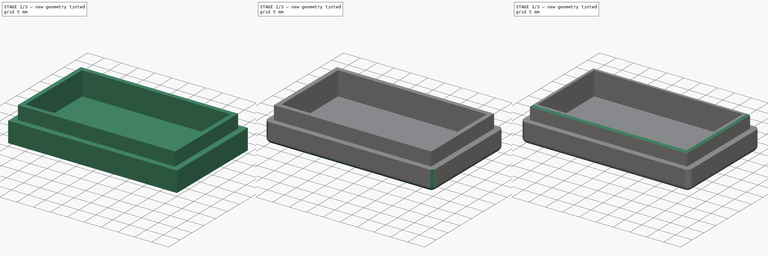
[diagram: build sequence overview — one tinted view per stage of 3, left to right]
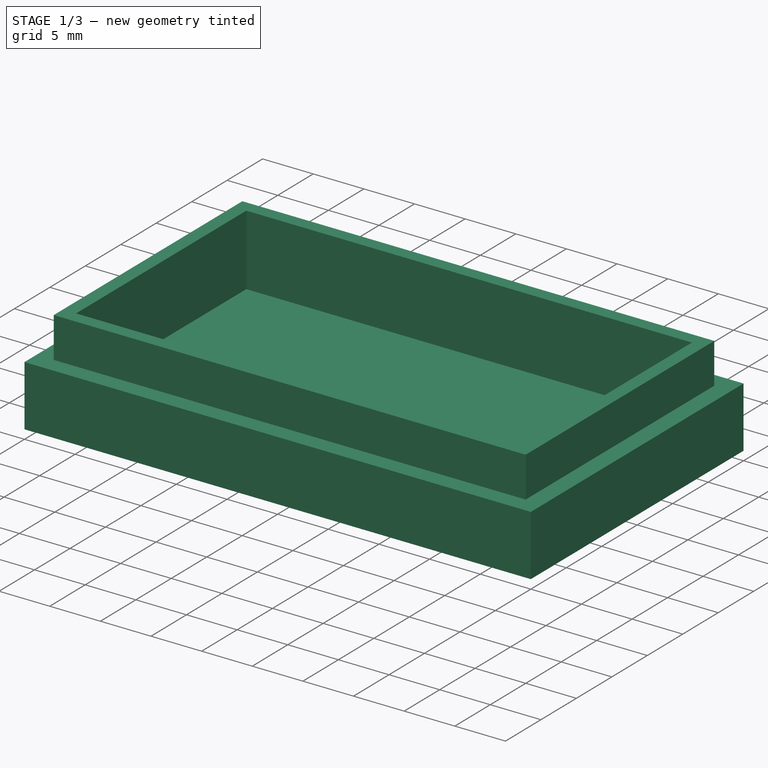
[diagram: stage 1 of 3 — iso view after this stage's code; geometry added in this stage tinted green]
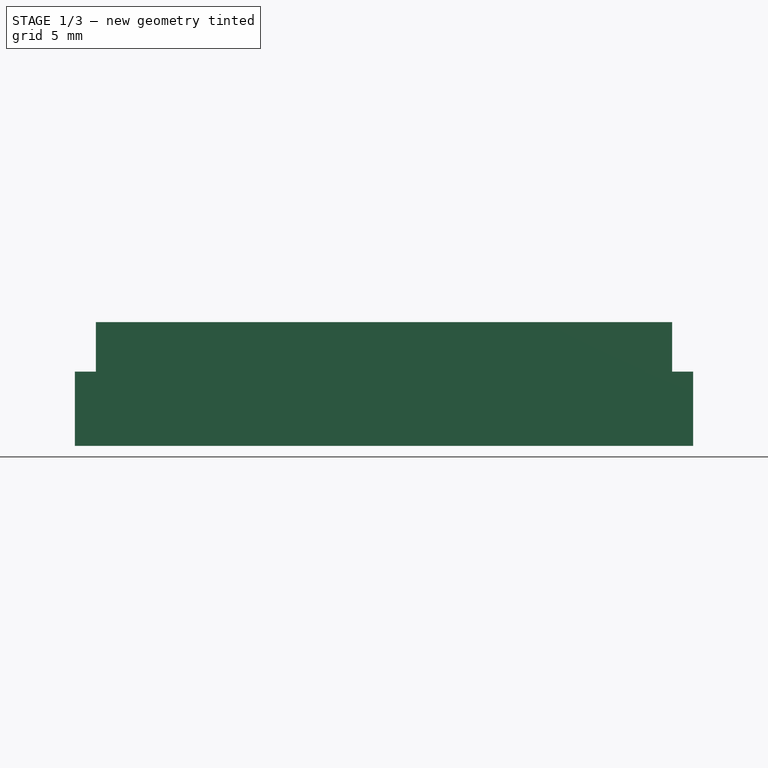
[diagram: stage 1 of 3 — front view after this stage's code; geometry added in this stage tinted green]
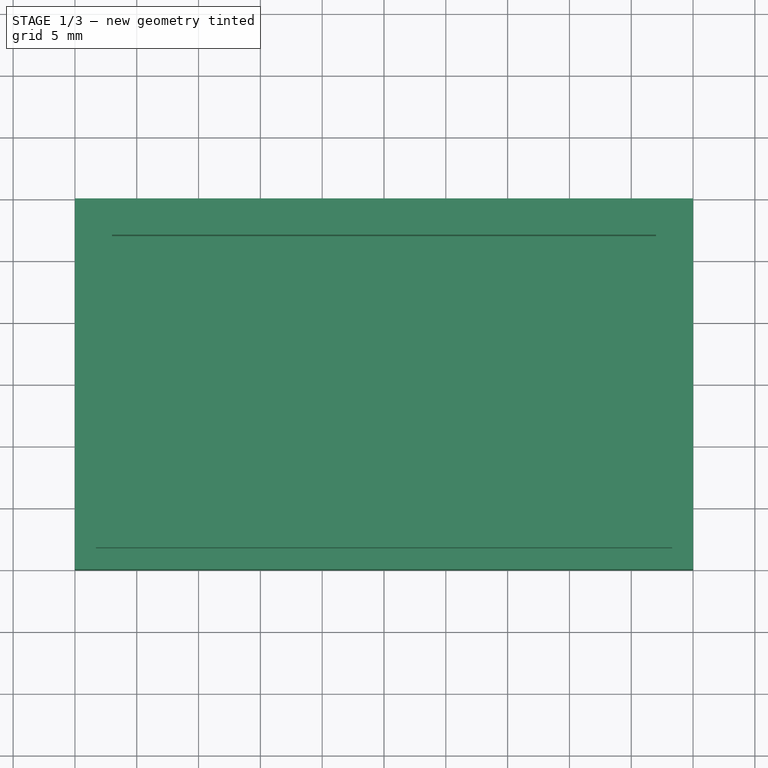
[diagram: stage 1 of 3 — top view after this stage's code; geometry added in this stage tinted green]
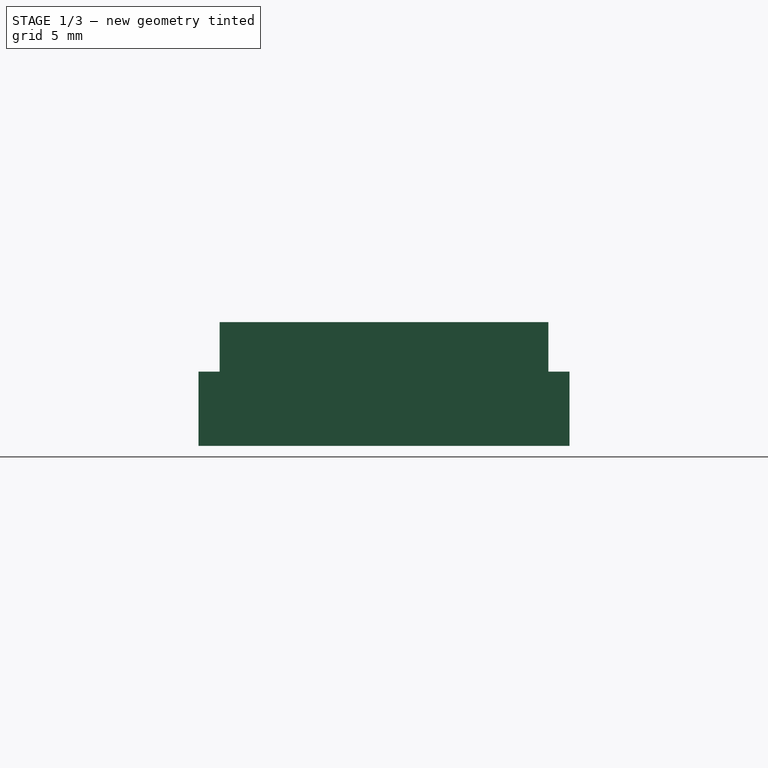
[diagram: stage 1 of 3 — right view after this stage's code; geometry added in this stage tinted green]
FCSTD DOCUMENT  (FreeCAD 0.17R13541 (Git))
Label: pilluleCouvercle
License: All rights reserved
LicenseURL: http://en.wikipedia.org/wiki/All_rights_reserved
objects: Sketcher::SketchObject×3, PartDesign::Pocket×2, PartDesign::Fillet×2, PartDesign::Pad×1, Part::Part2DObjectPython×1, Part::Extrusion×1, PartDesign::Chamfer×1, PartDesign::Body×1, Part::Cut×1
note: 16 computed .brp shape members not serialized (recipe doc carries the construction recipe); baked Part::Feature solids carry a one-line shape summary decoded from their .brp

FEATURE [Sketcher::SketchObject] Sketch
  MapMode = 5
  Support = -> [XY_Plane]
  sketch-geometry (4):
    g0: LineSegment StartX=-25 StartY=15 StartZ=0 EndX=25 EndY=15 EndZ=0
    g1: LineSegment StartX=25 StartY=15 StartZ=0 EndX=25 EndY=-15 EndZ=0
    g2: LineSegment StartX=25 StartY=-15 StartZ=0 EndX=-25 EndY=-15 EndZ=0
    g3: LineSegment StartX=-25 StartY=-15 StartZ=0 EndX=-25 EndY=15 EndZ=0
  constraints (12):
    c: Coincident(g0,g1)
    c: Coincident(g1,g2)
    c: Coincident(g2,g3)
    c: Coincident(g3,g0)
    c: Horizontal(g0)
    c: Horizontal(g2)
    c: Vertical(g1)
    c: Vertical(g3)
    c: DistanceX(g0,g0) = 50
    c: DistanceY(g3,g3) = 30
    c: Symmetric(g0,g0,g-2)
    c: Symmetric(g0,g2,g-1)
FEATURE [PartDesign::Pad] Pad
  Length = 10
  Length2 = 100
  Profile = -> Sketch
  Type = 0
FEATURE [Sketcher::SketchObject] Sketch001
  ExternalGeometry = -> [Pad]
  MapMode = 5
  Placement = pos=(0,0,10) rot=(0,0,1;0rad)
  Support = -> [Pad]
  sketch-geometry (4):
    g0: LineSegment StartX=-22 StartY=12 StartZ=0 EndX=22 EndY=12 EndZ=0
    g1: LineSegment StartX=22 StartY=12 StartZ=0 EndX=22 EndY=-12 EndZ=0
    g2: LineSegment StartX=22 StartY=-12 StartZ=0 EndX=-22 EndY=-12 EndZ=0
    g3: LineSegment StartX=-22 StartY=-12 StartZ=0 EndX=-22 EndY=12 EndZ=0
  constraints (12):
    c: Coincident(g0,g1)
    c: Coincident(g1,g2)
    c: Coincident(g2,g3)
    c: Coincident(g3,g0)
    c: Horizontal(g0)
    c: Horizontal(g2)
    c: Vertical(g1)
    c: Vertical(g3)
    c: DistanceX(g-5,g0) = 3
    c: DistanceX(g0,g-5) = 3
    c: DistanceY(g0,g-5) = 3
    c: DistanceY(g-6,g1) = 3
FEATURE [PartDesign::Pocket] Pocket
  BaseFeature = -> Pad
  Length = 7
  Length2 = 100
  Profile = -> Sketch001
  Type = 0
FEATURE [Sketcher::SketchObject] Sketch002
  ExternalGeometry = -> [Pocket]
  MapMode = 5
  Placement = pos=(0,0,10) rot=(0,0,1;0rad)
  Support = -> [Pocket]
  sketch-geometry (8):
    g0: LineSegment StartX=-23.3 StartY=13.3 StartZ=0 EndX=23.3 EndY=13.3 EndZ=0
    g1: LineSegment StartX=23.3 StartY=13.3 StartZ=0 EndX=23.3 EndY=-13.3 EndZ=0
    g2: LineSegment StartX=23.3 StartY=-13.3 StartZ=0 EndX=-23.3 EndY=-13.3 EndZ=0
    g3: LineSegment StartX=-23.3 StartY=-13.3 StartZ=0 EndX=-23.3 EndY=13.3 EndZ=0
    g4: LineSegment StartX=-26.7564 StartY=16.7718 StartZ=0 EndX=26.8351 EndY=16.7718 EndZ=0
    g5: LineSegment StartX=26.8351 StartY=16.7718 StartZ=0 EndX=26.8351 EndY=-16.5172 EndZ=0
    g6: LineSegment StartX=26.8351 StartY=-16.5172 StartZ=0 EndX=-26.7564 EndY=-16.5172 EndZ=0
    g7: LineSegment StartX=-26.7564 StartY=-16.5172 StartZ=0 EndX=-26.7564 EndY=16.7718 EndZ=0
  constraints (20):
    c: Coincident(g0,g1)
    c: Coincident(g1,g2)
    c: Coincident(g2,g3)
    c: Coincident(g3,g0)
    c: Horizontal(g0)
    c: Horizontal(g2)
    c: Vertical(g1)
    c: Vertical(g3)
    c: DistanceX(g-4,g0) = 1.7
    c: DistanceX(g0,g-5) = 1.7
    c: DistanceY(g0,g-5) = 1.7
    c: DistanceY(g-6,g1) = 1.7
    c: Coincident(g4,g5)
    c: Coincident(g5,g6)
    c: Coincident(g6,g7)
    c: Coincident(g7,g4)
    c: Horizontal(g4)
    c: Horizontal(g6)
    c: Vertical(g5)
    c: Vertical(g7)
FEATURE [PartDesign::Pocket] Pocket001
  BaseFeature = -> Pocket
  Length = 4
  Length2 = 100
  Profile = -> Sketch002
  Type = 0
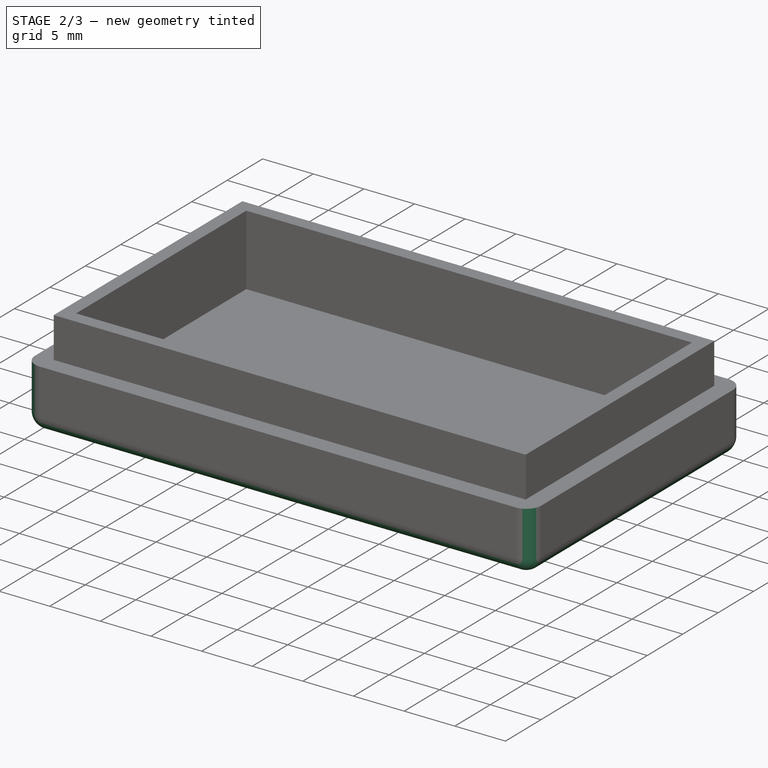
[diagram: stage 2 of 3 — iso view after this stage's code; geometry added in this stage tinted green]
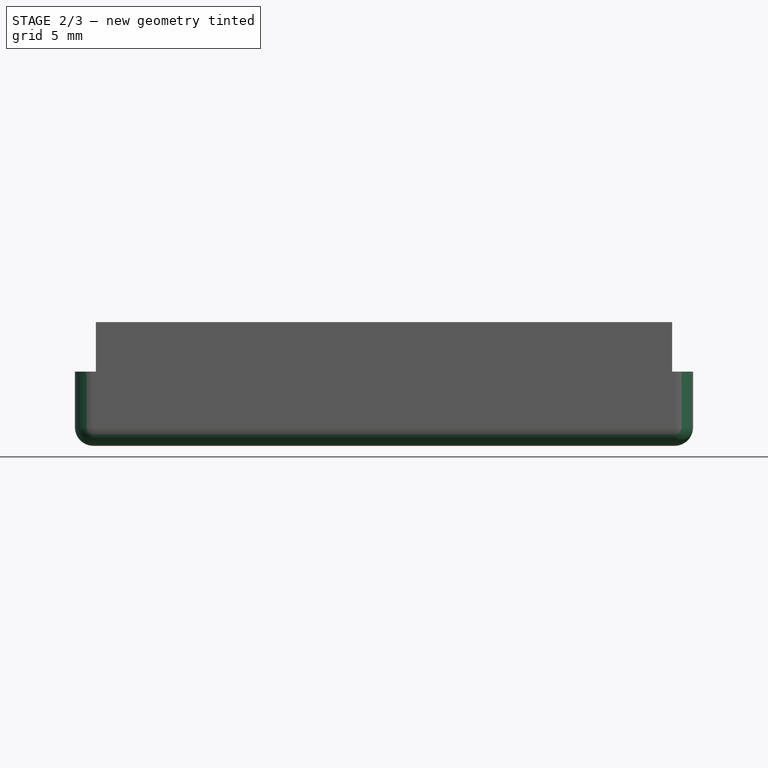
[diagram: stage 2 of 3 — front view after this stage's code; geometry added in this stage tinted green]
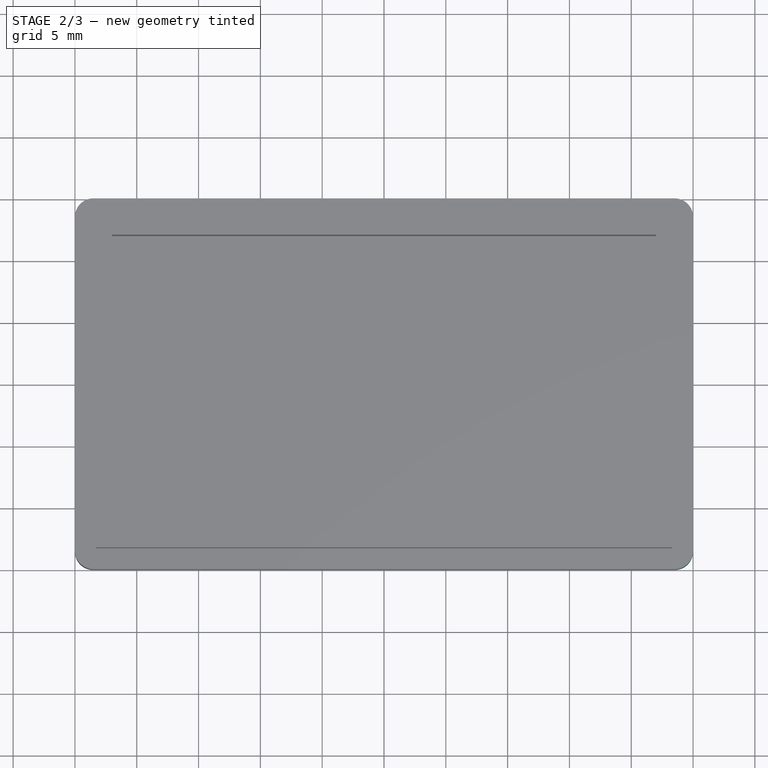
[diagram: stage 2 of 3 — top view after this stage's code; geometry added in this stage tinted green]
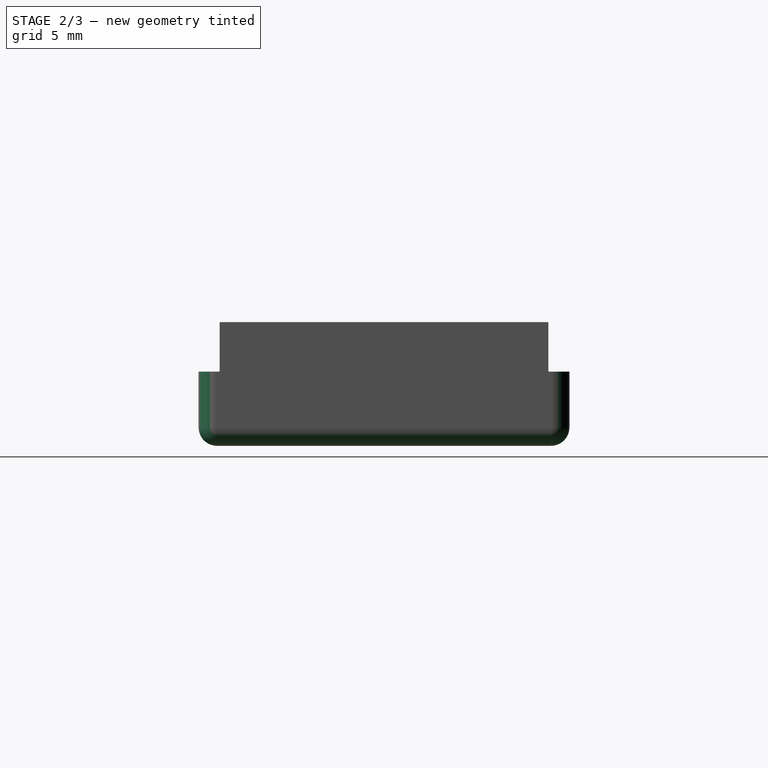
[diagram: stage 2 of 3 — right view after this stage's code; geometry added in this stage tinted green]
FEATURE [PartDesign::Fillet] Fillet
  Base = -> Pocket001 [Edge8,Edge16,Edge4,Edge2]
  BaseFeature = -> Pocket001
  Radius = 1.5
FEATURE [PartDesign::Fillet] Fillet001
  Base = -> Fillet [Edge1,Edge8,Edge11,Edge7]
  BaseFeature = -> Fillet
  Radius = 1.5
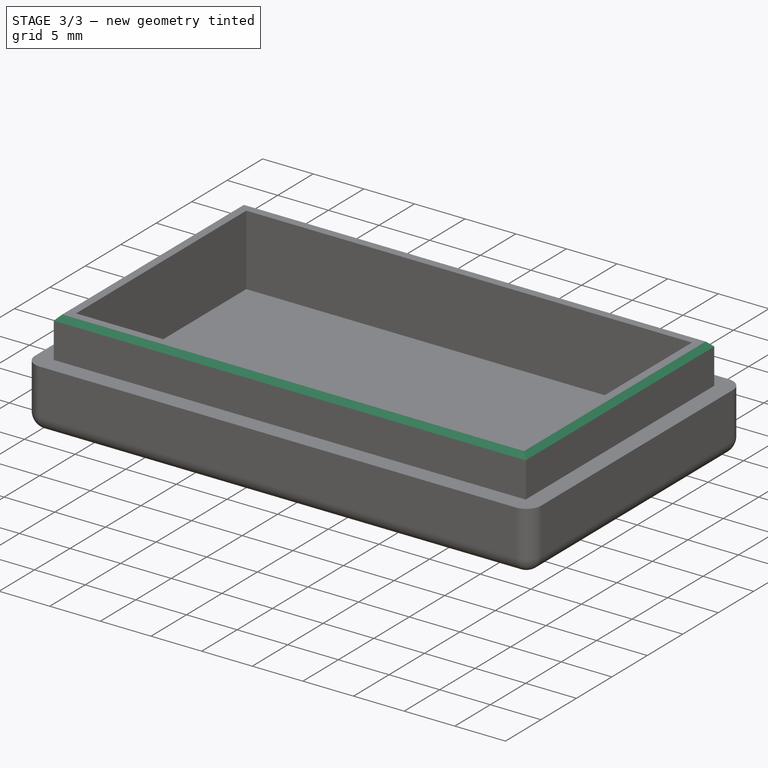
[diagram: stage 3 of 3 — iso view after this stage's code; geometry added in this stage tinted green]
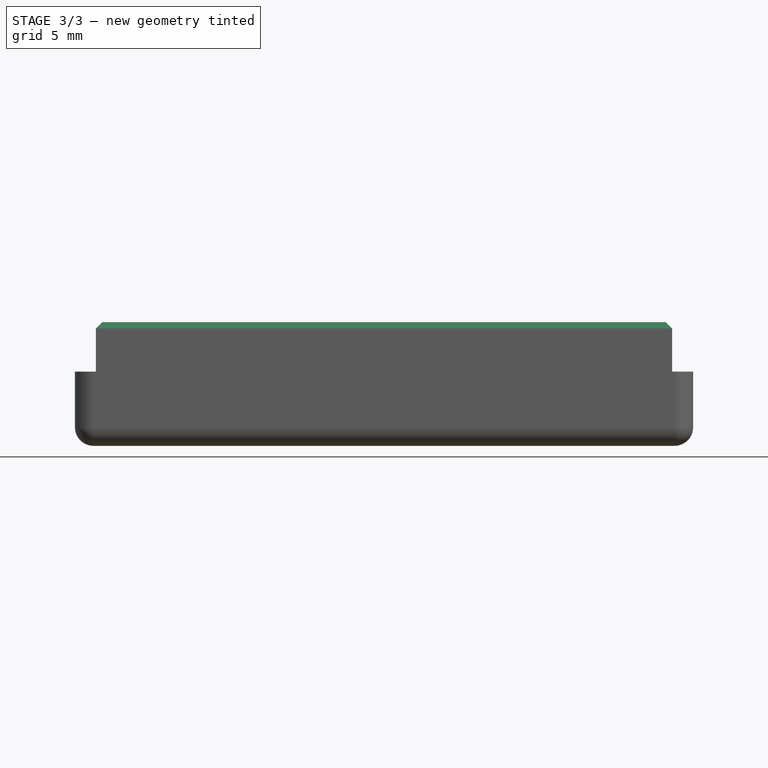
[diagram: stage 3 of 3 — front view after this stage's code; geometry added in this stage tinted green]
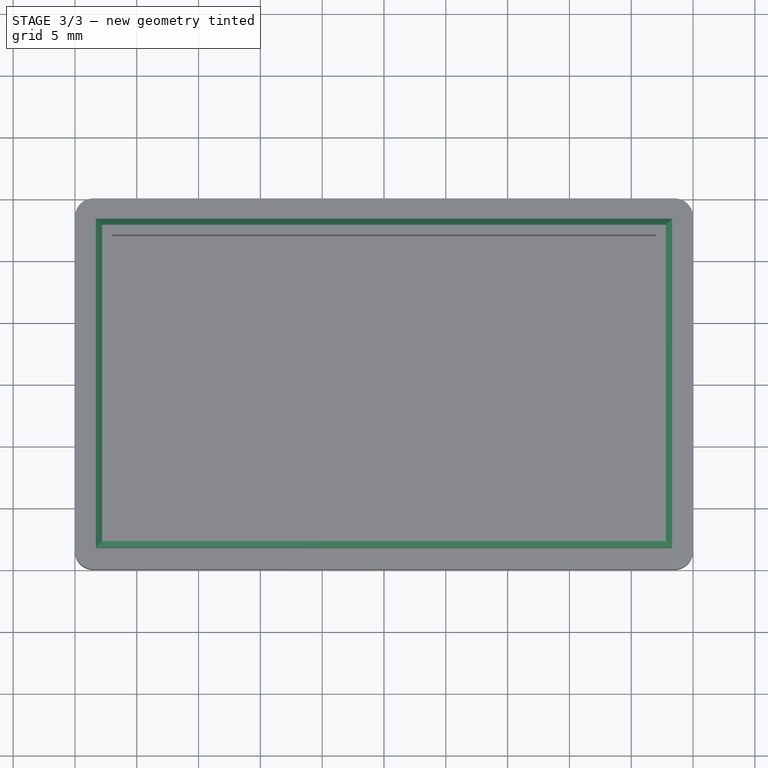
[diagram: stage 3 of 3 — top view after this stage's code; geometry added in this stage tinted green]
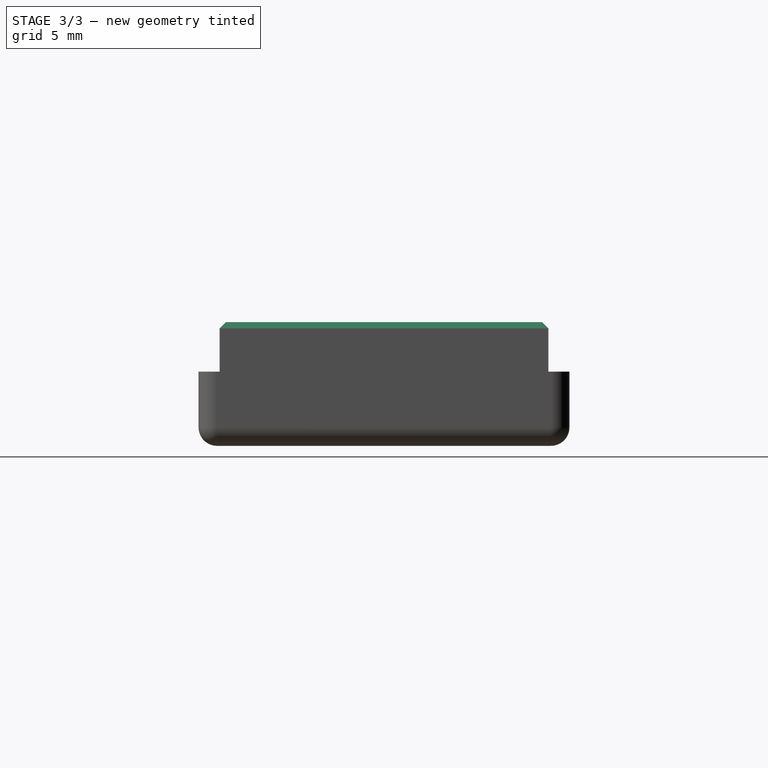
[diagram: stage 3 of 3 — right view after this stage's code; geometry added in this stage tinted green]
FEATURE [Part::Part2DObjectPython] ShapeString  # Draft 2D object (typed FeaturePython)
  FontFile = <path>
  Placement = pos=(11.0043,-1.76,0) rot=(0,1,0;3.14159rad)
  Size = 3
  String = Babeth
  Tracking = 0
FEATURE [Part::Extrusion] Extrude
  Base = -> ShapeString
  Dir = (0,0,1)
  DirMode = 0
  FaceMakerClass = Part::FaceMakerBullseye
  LengthFwd = 1
  LengthRev = 0
  Solid = false
  Symmetric = false
FEATURE [PartDesign::Chamfer] Chamfer
  Base = -> Fillet001 [Edge40,Edge44,Edge46,Edge43]
  BaseFeature = -> Fillet001
  Size = 0.5
FEATURE [PartDesign::Body] Body
  Group = -> [Sketch,Pad,Sketch001,Pocket,Sketch002,Pocket001,Fillet,Fillet001,Chamfer]
  Origin = -> Origin
  Tip = -> Chamfer
FEATURE [Part::Cut] Cut
  Base = -> Body
  Tool = -> Extrude
note: 1 file-system path scrubbed to <path> (originals preserved in the JSON sidecar)
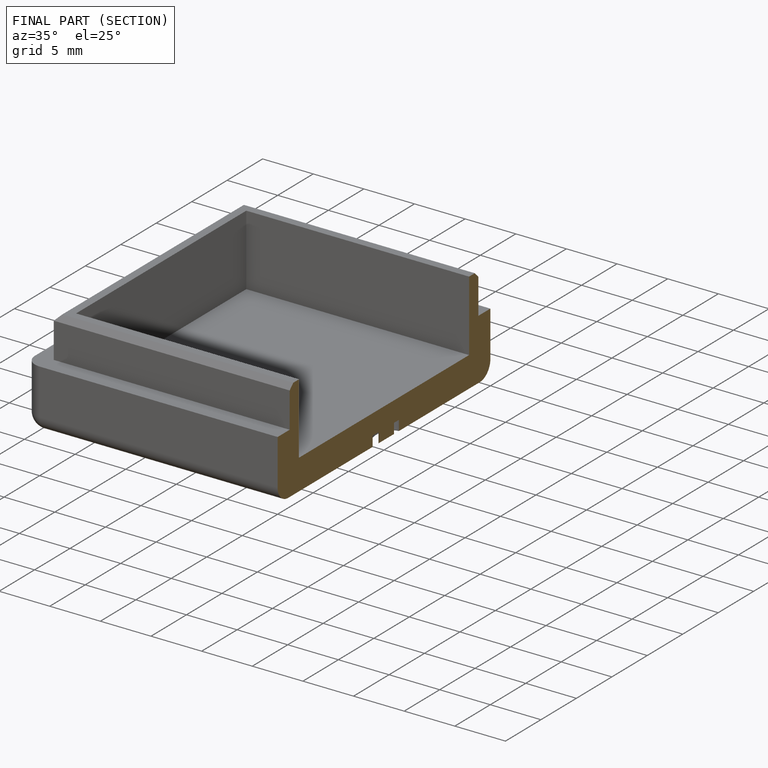
[diagram: finished part — half-section view (interior)]
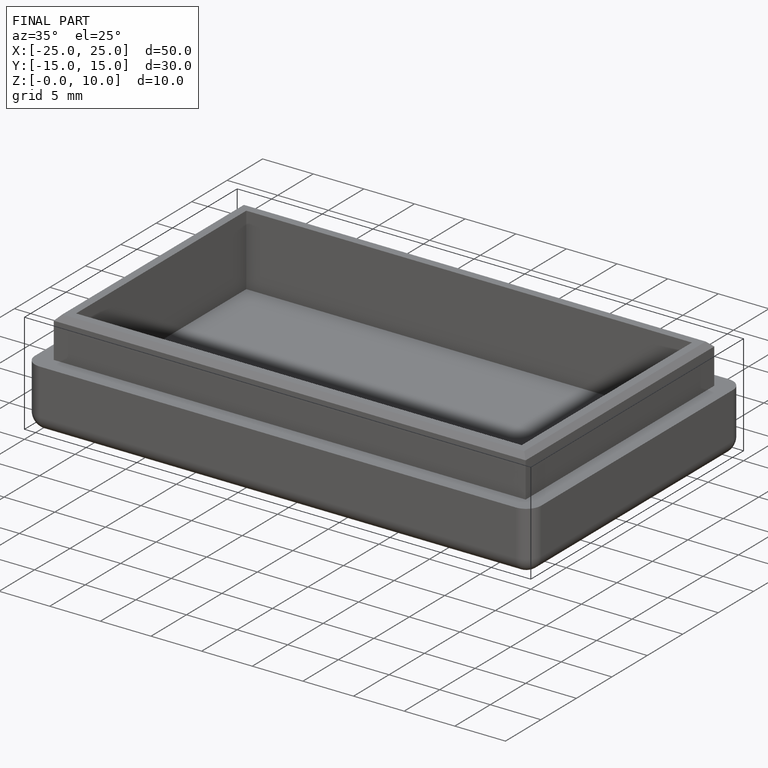
[diagram: finished part — iso view with bounding-box wireframe]
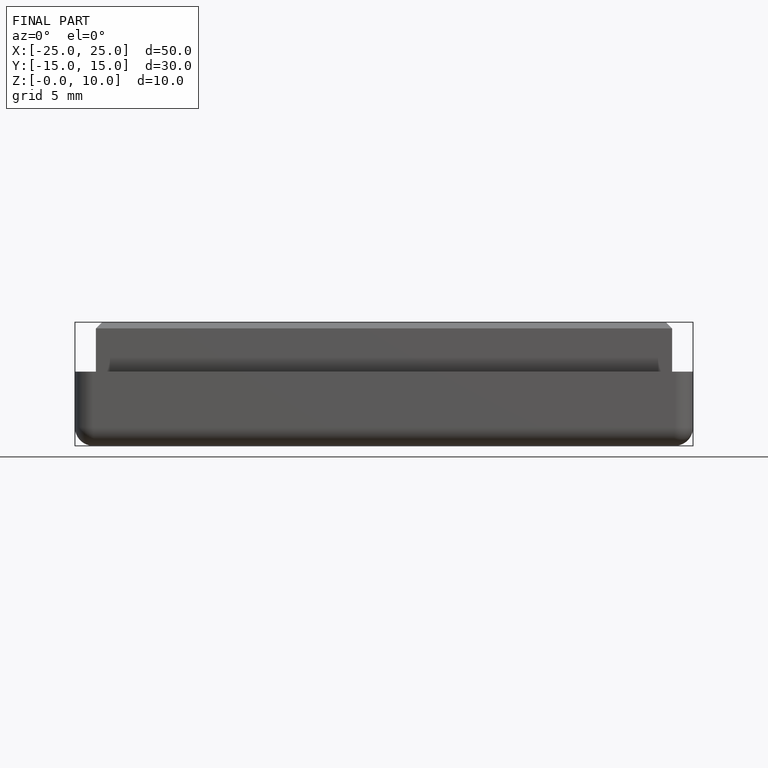
[diagram: finished part — front view with bounding-box wireframe]
